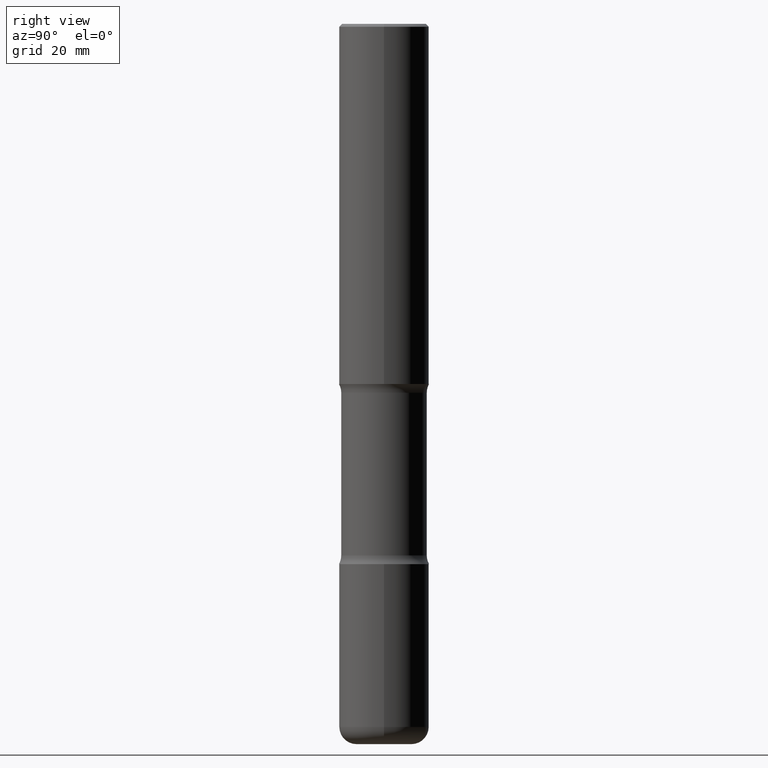
[diagram: clean part render]
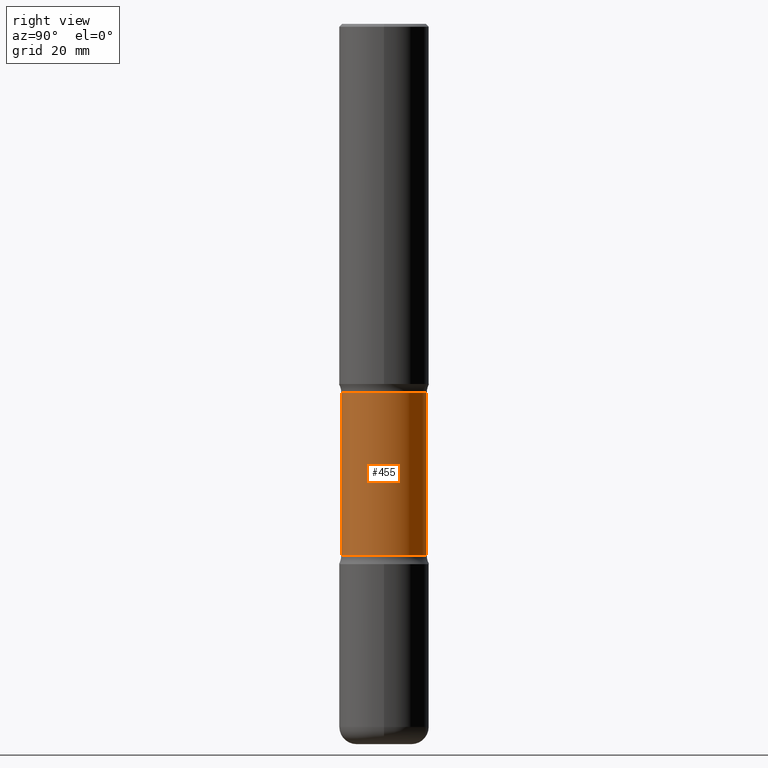
[diagram: same view with one face highlighted and labeled with its STEP entity id]
A machine part, right view. The second image highlights one B-rep face of the part: STEP entity #455.
In plain terms, the highlighted cylindrical surface (partial cylindrical patch) has radius 7.5406 mm, axis along (0, -0, -1).
Its self-contained STEP definition (entity closure, byte-faithful):
#6 = ORIENTED_EDGE ( 'NONE', *, *, #40, .T. ) ;
#40 = EDGE_CURVE ( 'NONE', #516, #220, #492, .T. ) ;
#66 = VERTEX_POINT ( 'NONE', #110 ) ;
#83 = DIRECTION ( 'NONE',  ( 6.982962677686266711E-15, 1.000000000000000000, -3.680805717779217644E-15 ) ) ;
#99 = CYLINDRICAL_SURFACE ( 'NONE', #161, 0.2968750000000000000 ) ;
#110 = CARTESIAN_POINT ( 'NONE',  ( 2.073067044938200360E-15, 0.2968749999999871214, -3.689484635215509289 ) ) ;
#123 = CARTESIAN_POINT ( 'NONE',  ( 9.017921104037724021E-29, -1.288835204215942242E-14, -3.689484635215508401 ) ) ;
#143 = EDGE_CURVE ( 'NONE', #66, #220, #345, .T. ) ;
#156 = DIRECTION ( 'NONE',  ( 2.521457479434076939E-29, -3.382661233743975076E-15, -1.000000000000000000 ) ) ;
#161 = AXIS2_PLACEMENT_3D ( 'NONE', #267, #438, #83 ) ;
#177 = VECTOR ( 'NONE', #424, 39.37007874015748143 ) ;
#194 = CARTESIAN_POINT ( 'NONE',  ( -2.036710343088299976E-15, -0.2968750000000173195, -4.999999999999999112 ) ) ;
#204 = LINE ( 'NONE', #252, #177 ) ;
#215 = CIRCLE ( 'NONE', #512, 0.2968750000000000000 ) ;
#220 = VERTEX_POINT ( 'NONE', #383 ) ;
#225 = EDGE_CURVE ( 'NONE', #350, #516, #215, .T. ) ;
#252 = CARTESIAN_POINT ( 'NONE',  ( 2.073067044938233492E-15, 0.2968749999999827360, -5.000000000000000888 ) ) ;
#253 = DIRECTION ( 'NONE',  ( 6.982962677686266711E-15, 1.000000000000000000, -3.680805717779217644E-15 ) ) ;
#254 = EDGE_CURVE ( 'NONE', #350, #66, #204, .T. ) ;
#267 = CARTESIAN_POINT ( 'NONE',  ( 1.232232987248685960E-28, -1.732138156284176685E-14, -5.000000000000000000 ) ) ;
#277 = CARTESIAN_POINT ( 'NONE',  ( -2.090307983695953569E-15, -0.2968750000000091038, -2.560515364784489822 ) ) ;
#287 = ORIENTED_EDGE ( 'NONE', *, *, #143, .F. ) ;
#307 = ORIENTED_EDGE ( 'NONE', *, *, #225, .T. ) ;
#315 = DIRECTION ( 'NONE',  ( 2.521457479434076939E-29, -3.382661233743974681E-15, -1.000000000000000000 ) ) ;
#345 = CIRCLE ( 'NONE', #373, 0.2968750000000000000 ) ;
#350 = VERTEX_POINT ( 'NONE', #519 ) ;
#373 = AXIS2_PLACEMENT_3D ( 'NONE', #123, #156, #503 ) ;
#383 = CARTESIAN_POINT ( 'NONE',  ( -2.090307983695922804E-15, -0.2968750000000128786, -3.689484635215507069 ) ) ;
#423 = DIRECTION ( 'NONE',  ( 2.521457479434076939E-29, -3.382661233743975076E-15, -1.000000000000000000 ) ) ;
#424 = DIRECTION ( 'NONE',  ( 2.521457479434076939E-29, -3.382661233743974681E-15, -1.000000000000000000 ) ) ;
#438 = DIRECTION ( 'NONE',  ( 2.521457479434076939E-29, -3.382661233743975076E-15, -1.000000000000000000 ) ) ;
#441 = ORIENTED_EDGE ( 'NONE', *, *, #254, .F. ) ;
#455 = ADVANCED_FACE ( 'NONE', ( #470 ), #99, .T. ) ;
#470 = FACE_OUTER_BOUND ( 'NONE', #532, .T. ) ;
#472 = VECTOR ( 'NONE', #315, 39.37007874015748143 ) ;
#492 = LINE ( 'NONE', #194, #472 ) ;
#503 = DIRECTION ( 'NONE',  ( 6.982962677686265133E-15, 1.000000000000000000, -3.680805717779217644E-15 ) ) ;
#512 = AXIS2_PLACEMENT_3D ( 'NONE', #554, #423, #253 ) ;
#516 = VERTEX_POINT ( 'NONE', #277 ) ;
#519 = CARTESIAN_POINT ( 'NONE',  ( 2.073067044938171961E-15, 0.2968749999999909517, -2.560515364784492043 ) ) ;
#532 = EDGE_LOOP ( 'NONE', ( #307, #6, #287, #441 ) ) ;
#554 = CARTESIAN_POINT ( 'NONE',  ( 6.171273093058203090E-29, -9.069431456984199816E-15, -2.560515364784490711 ) ) ;